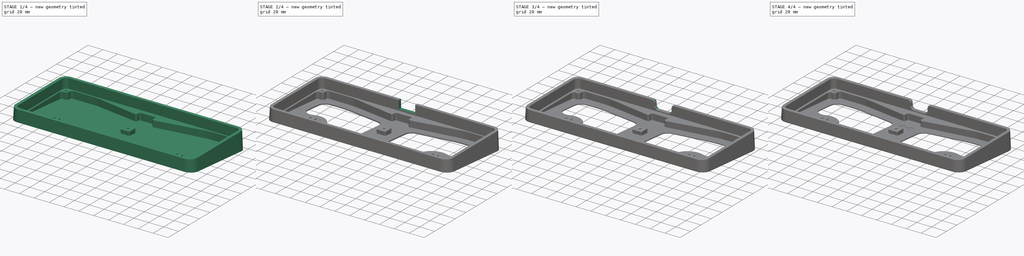
[diagram: build sequence overview — one tinted view per stage of 4, left to right]
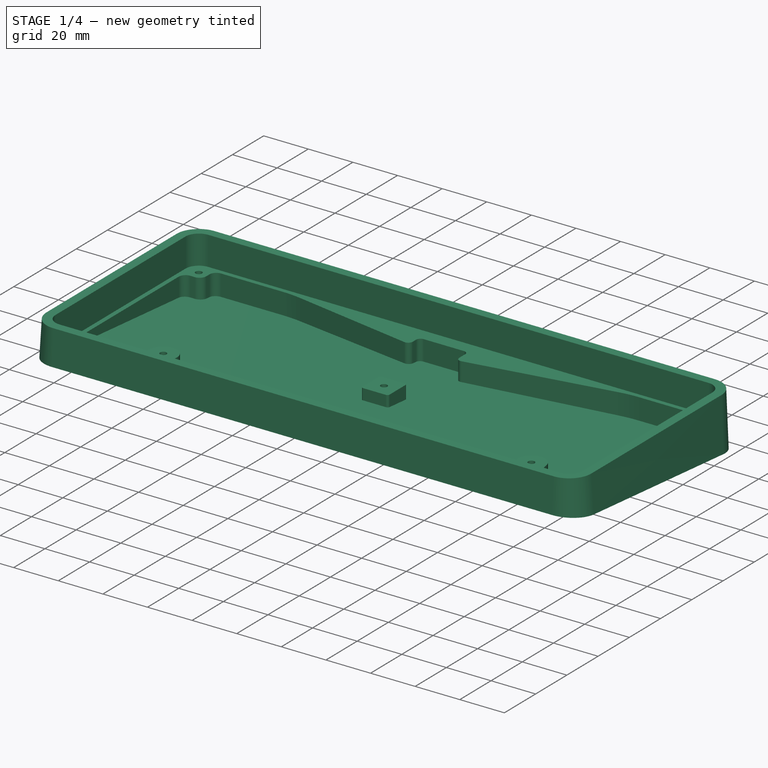
[diagram: stage 1 of 4 — iso view after this stage's code; geometry added in this stage tinted green]
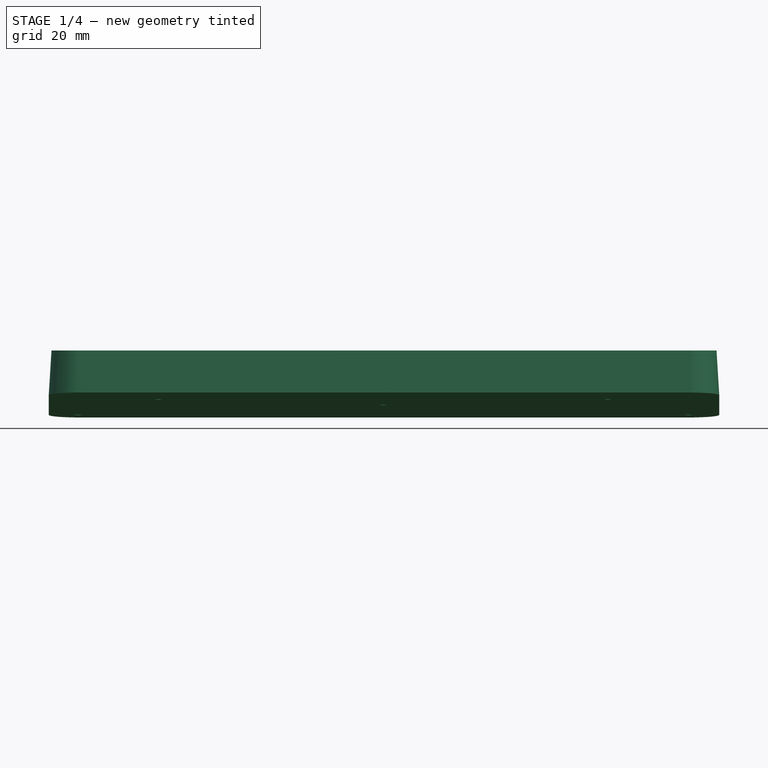
[diagram: stage 1 of 4 — front view after this stage's code; geometry added in this stage tinted green]
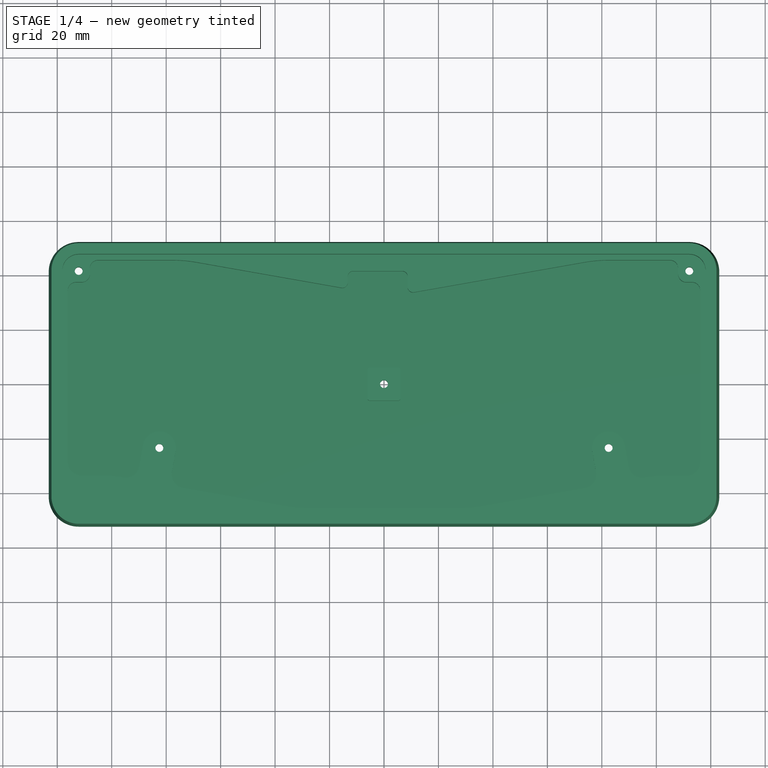
[diagram: stage 1 of 4 — top view after this stage's code; geometry added in this stage tinted green]
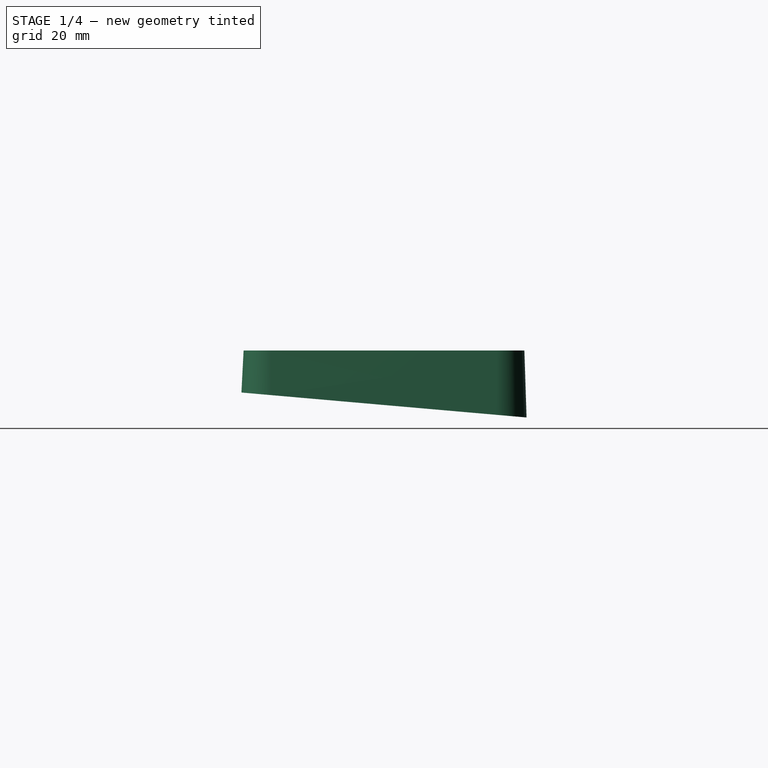
[diagram: stage 1 of 4 — right view after this stage's code; geometry added in this stage tinted green]
FCSTD DOCUMENT  (FreeCAD 0.20R)
Label: case
License: All rights reserved
LicenseURL: http://en.wikipedia.org/wiki/All_rights_reserved
objects: Sketcher::SketchObject×9, PartDesign::Pocket×6, PartDesign::Fillet×5, PartDesign::AdditiveLoft×1, PartDesign::Hole×1, PartDesign::Chamfer×1, PartDesign::Body×1
note: 38 computed .brp shape members not serialized (recipe doc carries the construction recipe); baked Part::Feature solids carry a one-line shape summary decoded from their .brp

FEATURE [Sketcher::SketchObject] Sketch001  label="ext2"
  AttachmentOffset = pos=(0,0,20) rot=(0,0,1;0rad)
  FullyConstrained = false
  MapMode = 5
  Placement = pos=(0,0,20) rot=(0,0,1;0rad)
  Support = -> [XY_Plane]
  sketch-geometry (8):
    g0: LineSegment StartX=-112.125 StartY=51.561 StartZ=0 EndX=112.125 EndY=51.561 EndZ=0
    g1: LineSegment StartX=-112.125 StartY=-51.561 StartZ=0 EndX=112.125 EndY=-51.561 EndZ=0
    g2: ArcOfCircle CenterX=112.125 CenterY=41.561 CenterZ=0 NormalX=0 NormalY=0 NormalZ=1 AngleXU=0 Radius=10 StartAngle=0 EndAngle=1.5708
    g3: ArcOfCircle CenterX=-112.125 CenterY=41.561 CenterZ=0 NormalX=0 NormalY=0 NormalZ=1 AngleXU=0 Radius=10 StartAngle=1.5708 EndAngle=3.14159
    g4: ArcOfCircle CenterX=-112.125 CenterY=-41.561 CenterZ=0 NormalX=0 NormalY=0 NormalZ=1 AngleXU=0 Radius=10 StartAngle=3.14159 EndAngle=4.71239
    g5: LineSegment StartX=-122.125 StartY=41.561 StartZ=0 EndX=-122.125 EndY=-41.561 EndZ=0
    g6: LineSegment StartX=122.125 StartY=41.561 StartZ=0 EndX=122.125 EndY=-41.561 EndZ=0
    g7: ArcOfCircle CenterX=112.125 CenterY=-41.561 CenterZ=0 NormalX=0 NormalY=0 NormalZ=1 AngleXU=0 Radius=10 StartAngle=4.71239 EndAngle=6.28319
  constraints (8):
    c: Coincident(g4,g5)
    c: Coincident(g3,g5)
    c: Coincident(g1,g4)
    c: Coincident(g0,g3)
    c: Coincident(g1,g7)
    c: Coincident(g0,g2)
    c: Coincident(g6,g7)
    c: Coincident(g2,g6)
FEATURE [Sketcher::SketchObject] Sketch002  label="ext3"
  AttachmentOffset = pos=(0,0,0) rot=(1,0,0;-0.087266rad)
  FullyConstrained = false
  MapMode = 5
  Placement = pos=(0,0,0) rot=(1,0,0;6.19592rad)
  Support = -> [XY_Plane]
  sketch-geometry (8):
    g0: LineSegment StartX=-112.125 StartY=52.561 StartZ=0 EndX=112.125 EndY=52.561 EndZ=0
    g1: ArcOfCircle CenterX=112.125 CenterY=41.561 CenterZ=0 NormalX=0 NormalY=0 NormalZ=1 AngleXU=0 Radius=11 StartAngle=0 EndAngle=1.5708
    g2: LineSegment StartX=123.125 StartY=41.561 StartZ=0 EndX=123.125 EndY=-41.561 EndZ=0
    g3: ArcOfCircle CenterX=112.125 CenterY=-41.561 CenterZ=0 NormalX=0 NormalY=0 NormalZ=1 AngleXU=0 Radius=11 StartAngle=4.71239 EndAngle=6.28319
    g4: LineSegment StartX=-112.125 StartY=-52.561 StartZ=0 EndX=112.125 EndY=-52.561 EndZ=0
    g5: ArcOfCircle CenterX=-112.125 CenterY=-41.561 CenterZ=0 NormalX=0 NormalY=0 NormalZ=1 AngleXU=0 Radius=11 StartAngle=3.14159 EndAngle=4.71239
    g6: LineSegment StartX=-123.125 StartY=41.561 StartZ=0 EndX=-123.125 EndY=-41.561 EndZ=0
    g7: ArcOfCircle CenterX=-112.125 CenterY=41.561 CenterZ=0 NormalX=0 NormalY=0 NormalZ=1 AngleXU=0 Radius=11 StartAngle=1.5708 EndAngle=3.14159
  constraints (8):
    c: Coincident(g5,g6)
    c: Coincident(g6,g7)
    c: Coincident(g4,g5)
    c: Coincident(g0,g7)
    c: Coincident(g3,g4)
    c: Coincident(g0,g1)
    c: Coincident(g2,g3)
    c: Coincident(g1,g2)
FEATURE [PartDesign::AdditiveLoft] AdditiveLoft
  Closed = false
  Profile = -> Sketch001
  Ruled = true
  Sections = -> [Sketch002]
FEATURE [Sketcher::SketchObject] Sketch  label="ext1"
  FullyConstrained = false
  MapMode = 5
  Placement = pos=(0,0,20) rot=(0,0,1;0rad)
  Support = -> [AdditiveLoft]
  sketch-geometry (8):
    g0: LineSegment StartX=-112.125 StartY=47.561 StartZ=0 EndX=112.125 EndY=47.561 EndZ=0
    g1: LineSegment StartX=-112.125 StartY=-47.561 StartZ=0 EndX=112.125 EndY=-47.561 EndZ=0
    g2: ArcOfCircle CenterX=112.125 CenterY=-41.561 CenterZ=0 NormalX=0 NormalY=0 NormalZ=1 AngleXU=0 Radius=6 StartAngle=4.71239 EndAngle=6.28319
    g3: ArcOfCircle CenterX=-112.125 CenterY=-41.561 CenterZ=0 NormalX=0 NormalY=0 NormalZ=1 AngleXU=0 Radius=6 StartAngle=3.14159 EndAngle=4.71239
    g4: LineSegment StartX=-118.125 StartY=41.561 StartZ=0 EndX=-118.125 EndY=-41.561 EndZ=0
    g5: ArcOfCircle CenterX=-112.125 CenterY=41.561 CenterZ=0 NormalX=0 NormalY=0 NormalZ=1 AngleXU=0 Radius=6 StartAngle=1.5708 EndAngle=3.14159
    g6: ArcOfCircle CenterX=112.125 CenterY=41.561 CenterZ=0 NormalX=0 NormalY=0 NormalZ=1 AngleXU=0 Radius=6 StartAngle=0 EndAngle=1.5708
    g7: LineSegment StartX=118.125 StartY=41.561 StartZ=0 EndX=118.125 EndY=-41.561 EndZ=0
  constraints (8):
    c: Coincident(g3,g4)
    c: Coincident(g4,g5)
    c: Coincident(g1,g3)
    c: Coincident(g0,g5)
    c: Coincident(g1,g2)
    c: Coincident(g0,g6)
    c: Coincident(g2,g7)
    c: Coincident(g6,g7)
FEATURE [PartDesign::Pocket] Pocket
  BaseFeature = -> AdditiveLoft
  Direction = (0,0,-1)
  Length = 13
  Length2 = 5
  Offset = -3
  Profile = -> Sketch
  ReferenceAxis = -> Sketch [N_Axis]
  Type = 0
FEATURE [Sketcher::SketchObject] Sketch003  label="int"
  FullyConstrained = false
  MapMode = 5
  Placement = pos=(0,0,7) rot=(0,0,1;0rad)
  Support = -> [Pocket]
  sketch-geometry (54):
    g0: ArcOfCircle CenterX=-111.125 CenterY=-28.579 CenterZ=0 NormalX=0 NormalY=0 NormalZ=1 AngleXU=0 Radius=5 StartAngle=3.14159 EndAngle=4.71239
    g1: LineSegment StartX=-111.125 StartY=-33.579 StartZ=0 EndX=-103.958 EndY=-33.579 EndZ=0
    g2: ArcOfCircle CenterX=-27.256 CenterY=4.43899 CenterZ=0 NormalX=0 NormalY=0 NormalZ=1 AngleXU=0 Radius=50 StartAngle=4.53786 EndAngle=4.71239
    g3: ArcOfCircle CenterX=111.125 CenterY=-28.579 CenterZ=0 NormalX=0 NormalY=0 NormalZ=1 AngleXU=0 Radius=5 StartAngle=4.71239 EndAngle=6.28319
    g4: LineSegment StartX=111.125 StartY=-33.579 StartZ=0 EndX=103.958 EndY=-33.579 EndZ=0
    g5: ArcOfCircle CenterX=27.256 CenterY=4.43899 CenterZ=0 NormalX=0 NormalY=0 NormalZ=1 AngleXU=0 Radius=50 StartAngle=4.71239 EndAngle=4.88692
    g6: LineSegment StartX=-27.256 StartY=-45.561 StartZ=0 EndX=27.256 EndY=-45.561 EndZ=0
    g7: ArcOfCircle CenterX=-11.3028 CenterY=39.541 CenterZ=0 NormalX=0 NormalY=0 NormalZ=1 AngleXU=0 Radius=2 StartAngle=1.5708 EndAngle=3.14159
    g8: LineSegment StartX=-11.3028 StartY=41.541 StartZ=0 EndX=6.69716 EndY=41.541 EndZ=0
    g9: ArcOfCircle CenterX=6.69716 CenterY=39.541 CenterZ=0 NormalX=0 NormalY=0 NormalZ=1 AngleXU=0 Radius=2 StartAngle=0 EndAngle=1.5708
    g10: LineSegment StartX=8.69716 StartY=35.7139 StartZ=0 EndX=8.69716 EndY=39.541 EndZ=0
    g11: ArcOfCircle CenterX=10.6972 CenterY=35.7139 CenterZ=0 NormalX=0 NormalY=0 NormalZ=1 AngleXU=0 Radius=2 StartAngle=3.14159 EndAngle=4.88692
    g12: LineSegment StartX=-13.3028 StartY=37.3635 StartZ=0 EndX=-13.3028 EndY=39.541 EndZ=0
    g13: ArcOfCircle CenterX=-15.3028 CenterY=37.3635 CenterZ=0 NormalX=0 NormalY=0 NormalZ=1 AngleXU=0 Radius=2 StartAngle=4.53786 EndAngle=6.28319
    g14: LineSegment StartX=-69.0025 StartY=44.8014 StartZ=0 EndX=-15.6501 EndY=35.3939 EndZ=0
    g15: ArcOfCircle CenterX=-77.6849 CenterY=-4.43899 CenterZ=0 NormalX=0 NormalY=0 NormalZ=1 AngleXU=0 Radius=50 StartAngle=1.39626 EndAngle=1.5708
    g16: LineSegment StartX=11.0445 StartY=33.7443 StartZ=0 EndX=73.7525 EndY=44.8014 EndZ=0
    g17: ArcOfCircle CenterX=82.4349 CenterY=-4.43899 CenterZ=0 NormalX=0 NormalY=0 NormalZ=1 AngleXU=0 Radius=50 StartAngle=1.5708 EndAngle=1.74533
    g18: ArcOfCircle CenterX=-82.5 CenterY=-23.459 CenterZ=0 NormalX=0 NormalY=0 NormalZ=1 AngleXU=0 Radius=6.1 StartAngle=6.10865 EndAngle=9.25025
    g19: ArcOfCircle CenterX=82.5 CenterY=-23.459 CenterZ=0 NormalX=0 NormalY=0 NormalZ=1 AngleXU=0 Radius=6.1 StartAngle=0.174533 EndAngle=3.31613
    g20: ArcOfCircle CenterX=5.1 CenterY=-5.1 CenterZ=0 NormalX=0 NormalY=0 NormalZ=1 AngleXU=0 Radius=1 StartAngle=4.71239 EndAngle=6.28319
    g21: LineSegment StartX=5.1 StartY=-6.1 StartZ=0 EndX=-5.1 EndY=-6.1 EndZ=0
    g22: ArcOfCircle CenterX=-5.1 CenterY=-5.1 CenterZ=0 NormalX=0 NormalY=0 NormalZ=1 AngleXU=0 Radius=1 StartAngle=3.14159 EndAngle=4.71239
    g23: LineSegment StartX=-6.1 StartY=5.1 StartZ=0 EndX=-6.1 EndY=-5.1 EndZ=0
    g24: ArcOfCircle CenterX=-5.1 CenterY=5.1 CenterZ=0 NormalX=0 NormalY=0 NormalZ=1 AngleXU=0 Radius=1 StartAngle=1.5708 EndAngle=3.14159
    g25: LineSegment StartX=5.1 StartY=6.1 StartZ=0 EndX=-5.1 EndY=6.1 EndZ=0
    g26: LineSegment StartX=6.1 StartY=5.1 StartZ=0 EndX=6.1 EndY=-5.1 EndZ=0
    g27: ArcOfCircle CenterX=5.1 CenterY=5.1 CenterZ=0 NormalX=0 NormalY=0 NormalZ=1 AngleXU=0 Radius=1 StartAngle=0 EndAngle=1.5708
    g28: ArcOfCircle CenterX=111.025 CenterY=40.461 CenterZ=0 NormalX=0 NormalY=0 NormalZ=1 AngleXU=0 Radius=3 StartAngle=3.14159 EndAngle=4.71239
    g29: LineSegment StartX=113.125 StartY=37.461 StartZ=0 EndX=111.025 EndY=37.461 EndZ=0
    g30: LineSegment StartX=116.125 StartY=34.461 StartZ=0 EndX=116.125 EndY=-28.579 EndZ=0
    g31: ArcOfCircle CenterX=113.125 CenterY=34.461 CenterZ=0 NormalX=0 NormalY=0 NormalZ=1 AngleXU=0 Radius=3 StartAngle=0 EndAngle=1.5708
    g32: LineSegment StartX=82.4349 StartY=45.561 StartZ=0 EndX=105.025 EndY=45.561 EndZ=0
    g33: LineSegment StartX=108.025 StartY=42.561 StartZ=0 EndX=108.025 EndY=40.461 EndZ=0
    g34: ArcOfCircle CenterX=105.025 CenterY=42.561 CenterZ=0 NormalX=0 NormalY=0 NormalZ=1 AngleXU=0 Radius=3 StartAngle=0 EndAngle=1.5708
    g35: LineSegment StartX=-116.125 StartY=34.461 StartZ=0 EndX=-116.125 EndY=-28.579 EndZ=0
    g36: ArcOfCircle CenterX=-113.125 CenterY=34.461 CenterZ=0 NormalX=0 NormalY=0 NormalZ=1 AngleXU=0 Radius=3 StartAngle=1.5708 EndAngle=3.14159
    g37: LineSegment StartX=-113.125 StartY=37.461 StartZ=0 EndX=-111.025 EndY=37.461 EndZ=0
    g38: ArcOfCircle CenterX=-111.025 CenterY=40.461 CenterZ=0 NormalX=0 NormalY=0 NormalZ=1 AngleXU=0 Radius=3 StartAngle=4.71239 EndAngle=6.28319
    g39: LineSegment StartX=-108.025 StartY=42.561 StartZ=0 EndX=-108.025 EndY=40.461 EndZ=0
    g40: LineSegment StartX=-105.025 StartY=45.561 StartZ=0 EndX=-77.6849 EndY=45.561 EndZ=0
    g41: ArcOfCircle CenterX=-105.025 CenterY=42.561 CenterZ=0 NormalX=0 NormalY=0 NormalZ=1 AngleXU=0 Radius=3 StartAngle=1.5708 EndAngle=3.14159
    g42: LineSegment StartX=-73.8144 StartY=-38.1228 StartZ=0 EndX=-35.9384 EndY=-44.8014 EndZ=0
    g43: LineSegment StartX=-77.8702 StartY=-32.3306 StartZ=0 EndX=-76.4927 EndY=-24.5182 EndZ=0
    g44: ArcOfCircle CenterX=-72.9462 CenterY=-33.1988 CenterZ=0 NormalX=0 NormalY=0 NormalZ=1 AngleXU=0 Radius=5 StartAngle=2.96706 EndAngle=4.53786
    g45: LineSegment StartX=-89.8851 StartY=-30.2135 StartZ=0 EndX=-88.5073 EndY=-22.3997 EndZ=0
    g46: ArcOfCircle CenterX=-103.958 CenterY=-83.579 CenterZ=0 NormalX=0 NormalY=0 NormalZ=1 AngleXU=0 Radius=50 StartAngle=1.40367 EndAngle=1.5708
    g47: ArcOfCircle CenterX=-94.8092 CenterY=-29.3453 CenterZ=0 NormalX=0 NormalY=0 NormalZ=1 AngleXU=0 Radius=5 StartAngle=4.54526 EndAngle=6.10865
    g48: LineSegment StartX=89.8851 StartY=-30.2135 StartZ=0 EndX=88.5073 EndY=-22.3997 EndZ=0
    g49: ArcOfCircle CenterX=103.958 CenterY=-83.579 CenterZ=0 NormalX=0 NormalY=0 NormalZ=1 AngleXU=0 Radius=50 StartAngle=1.5708 EndAngle=1.73792
    g50: ArcOfCircle CenterX=94.8092 CenterY=-29.3453 CenterZ=0 NormalX=0 NormalY=0 NormalZ=1 AngleXU=0 Radius=5 StartAngle=3.31613 EndAngle=4.87951
    g51: LineSegment StartX=73.8144 StartY=-38.1228 StartZ=0 EndX=35.9384 EndY=-44.8014 EndZ=0
    g52: LineSegment StartX=77.8702 StartY=-32.3306 StartZ=0 EndX=76.4927 EndY=-24.5182 EndZ=0
    g53: ArcOfCircle CenterX=72.9462 CenterY=-33.1988 CenterZ=0 NormalX=0 NormalY=0 NormalZ=1 AngleXU=0 Radius=5 StartAngle=4.88692 EndAngle=6.45772
  constraints (54):
    c: Coincident(g0,g35)
    c: Coincident(g35,g36)
    c: Coincident(g36,g37)
    c: Coincident(g0,g1)
    c: Coincident(g37,g38)
    c: Coincident(g38,g39)
    c: Coincident(g39,g41)
    c: Coincident(g40,g41)
    c: Coincident(g1,g46)
    c: Coincident(g46,g47)
    c: Coincident(g45,g47)
    c: Coincident(g18,g45)
    c: Coincident(g43,g44)
    c: Coincident(g15,g40)
    c: Coincident(g18,g43)
    c: Coincident(g42,g44)
    c: Coincident(g14,g15)
    c: Coincident(g2,g42)
    c: Coincident(g2,g6)
    c: Coincident(g13,g14)
    c: Coincident(g12,g13)
    c: Coincident(g7,g12)
    c: Coincident(g7,g8)
    c: Coincident(g22,g23)
    c: Coincident(g23,g24)
    c: Coincident(g21,g22)
    c: Coincident(g24,g25)
    c: Coincident(g20,g21)
    c: Coincident(g25,g27)
    c: Coincident(g20,g26)
    c: Coincident(g26,g27)
    c: Coincident(g8,g9)
    c: Coincident(g10,g11)
    c: Coincident(g9,g10)
    c: Coincident(g11,g16)
    c: Coincident(g5,g6)
    c: Coincident(g5,g51)
    c: Coincident(g16,g17)
    c: Coincident(g51,g53)
    c: Coincident(g19,g52)
    c: Coincident(g52,g53)
    c: Coincident(g17,g32)
    c: Coincident(g19,g48)
    c: Coincident(g48,g50)
    c: Coincident(g49,g50)
    c: Coincident(g4,g49)
    c: Coincident(g32,g34)
    c: Coincident(g28,g33)
    c: Coincident(g33,g34)
    c: Coincident(g28,g29)
    c: Coincident(g3,g4)
    c: Coincident(g29,g31)
    c: Coincident(g3,g30)
    c: Coincident(g30,g31)
FEATURE [Sketcher::SketchObject] Sketch004  label="percage"
  FullyConstrained = false
  MapMode = 5
  Placement = pos=(0,0,7) rot=(0,0,1;0rad)
  Support = -> [Pocket]
  sketch-geometry (5):
    g0: Circle CenterX=-82.5 CenterY=-23.459 CenterZ=0 NormalX=0 NormalY=0 NormalZ=-1 AngleXU=0 Radius=1.1
    g1: Circle CenterX=0 CenterY=0 CenterZ=0 NormalX=0 NormalY=0 NormalZ=-1 AngleXU=0 Radius=1.1
    g2: Circle CenterX=82.5 CenterY=-23.459 CenterZ=0 NormalX=0 NormalY=0 NormalZ=-1 AngleXU=0 Radius=1.1
    g3: Circle CenterX=112.125 CenterY=41.561 CenterZ=0 NormalX=0 NormalY=0 NormalZ=-1 AngleXU=0 Radius=1.1
    g4: Circle CenterX=-112.125 CenterY=41.561 CenterZ=0 NormalX=0 NormalY=0 NormalZ=-1 AngleXU=0 Radius=1.1
FEATURE [PartDesign::Pocket] Pocket001
  BaseFeature = -> Pocket
  Direction = (0,0,-1)
  Length = 0
  Length2 = 5
  Offset = -1.5
  Profile = -> Sketch003
  ReferenceAxis = -> Sketch003 [N_Axis]
  Type = 3
  UpToFace = -> Pocket [Face18]
FEATURE [PartDesign::Hole] Hole
  BaseFeature = -> Pocket001
  CustomThreadClearance = 0
  Depth = 542.36
  DepthType = 1
  Diameter = 2.9
  DrillForDepth = false
  DrillPoint = 1
  DrillPointAngle = 118
  HoleCutCountersinkAngle = 90
  HoleCutCustomValues = false
  HoleCutDepth = 0
  HoleCutDiameter = 6.1
  HoleCutType = 0
  ModelThread = false
  Profile = -> Sketch004
  Tapered = false
  TaperedAngle = 90
  ThreadClass = 0
  ThreadDepth = 542.36
  ThreadDepthType = 0
  ThreadDirection = 0
  ThreadFit = 0
  ThreadSize = 8
  ThreadType = 1
  Threaded = false
  UseCustomThreadClearance = false
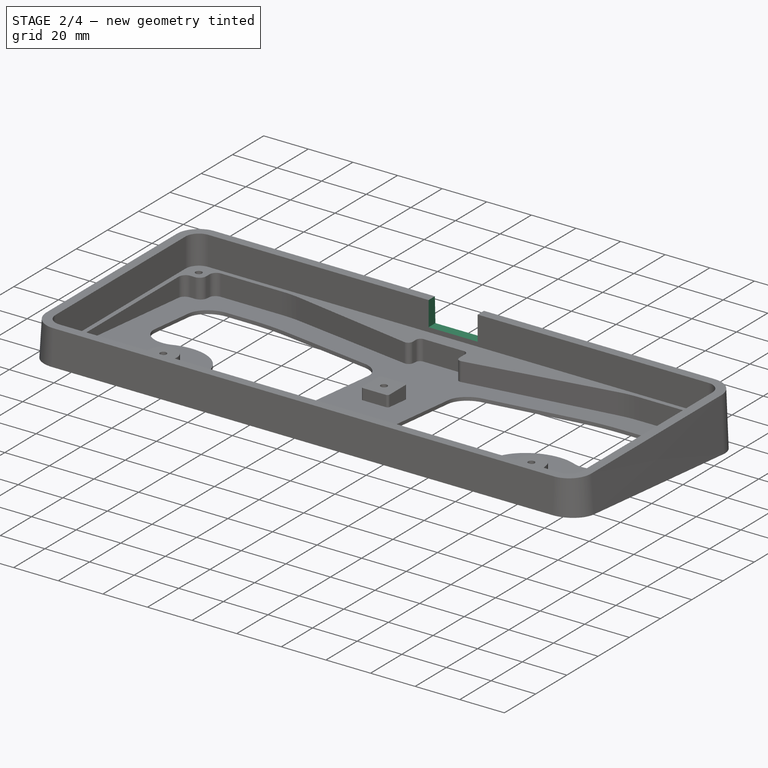
[diagram: stage 2 of 4 — iso view after this stage's code; geometry added in this stage tinted green]
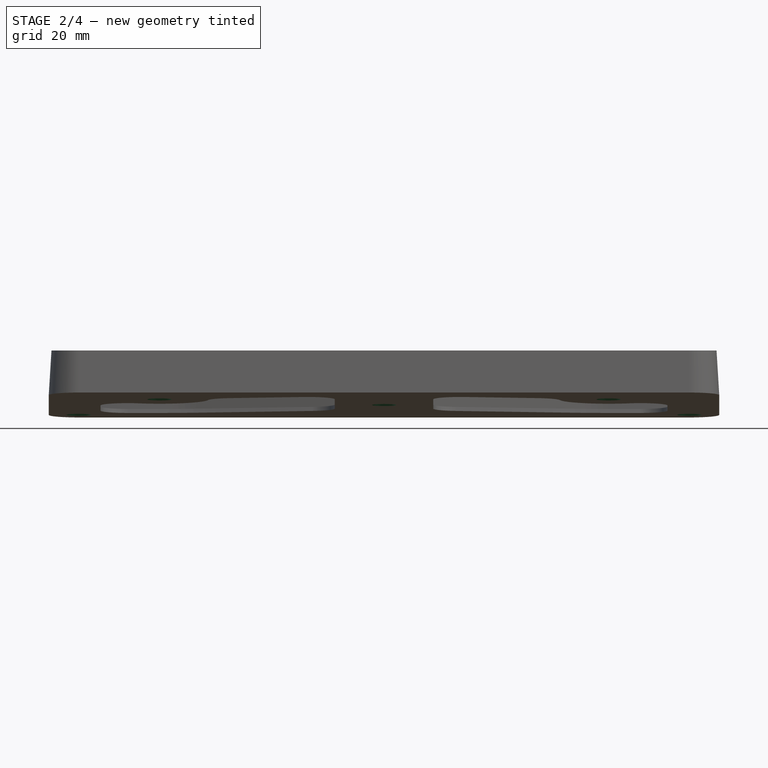
[diagram: stage 2 of 4 — front view after this stage's code; geometry added in this stage tinted green]
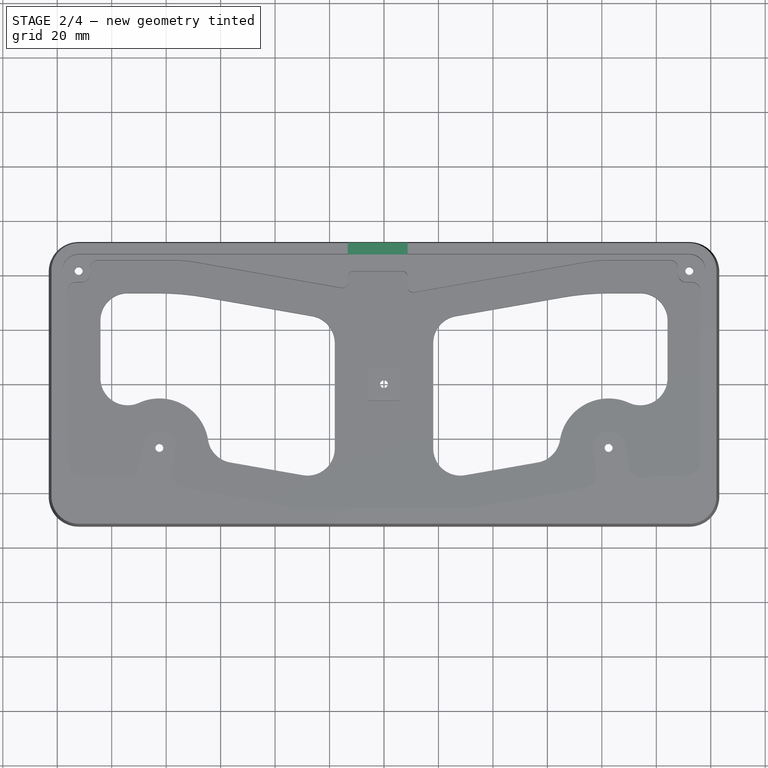
[diagram: stage 2 of 4 — top view after this stage's code; geometry added in this stage tinted green]
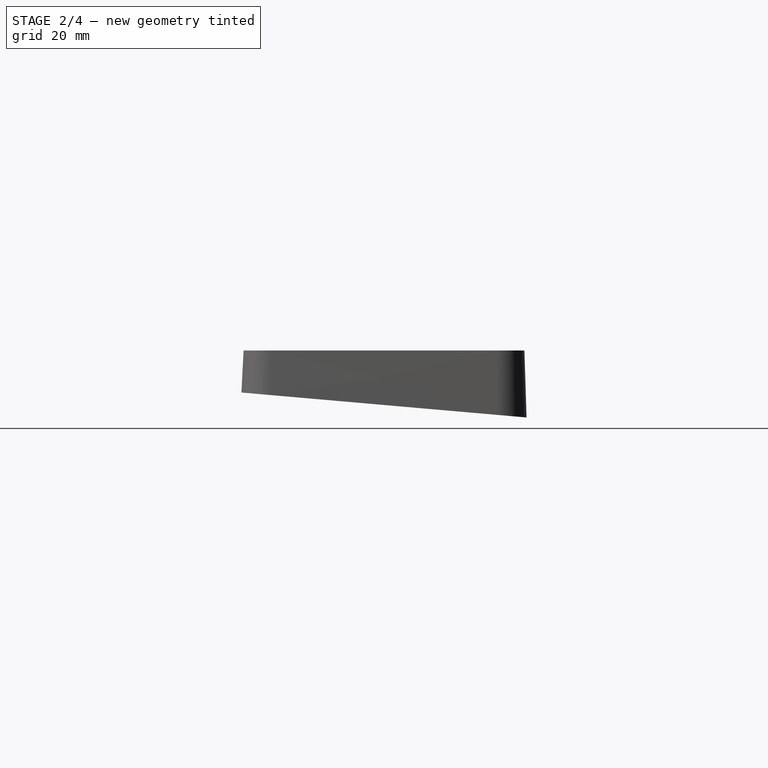
[diagram: stage 2 of 4 — right view after this stage's code; geometry added in this stage tinted green]
FEATURE [PartDesign::Chamfer] Chamfer
  Angle = 45
  Base = -> Hole [Edge52,Edge49,Edge51,Edge50,Edge53]
  BaseFeature = -> Hole
  ChamferType = 0
  FlipDirection = false
  Size = 3
  Size2 = 1
  SupportTransform = false
  UseAllEdges = false
FEATURE [Sketcher::SketchObject] Sketch005  label="ajour"
  FullyConstrained = false
  MapMode = 5
  Placement = pos=(0,0.130236,1.48861) rot=(-1,0,0;0.087266rad)
  Support = -> [Hole]
  sketch-geometry (24):
    g0: ArcOfCircle CenterX=-28.1 CenterY=15.2498 CenterZ=0 NormalX=0 NormalY=0 NormalZ=1 AngleXU=0 Radius=10 StartAngle=0 EndAngle=1.39626
    g1: LineSegment StartX=-18.1 StartY=-23.8441 StartZ=0 EndX=-18.1 EndY=15.2498 EndZ=0
    g2: ArcOfCircle CenterX=-28.1 CenterY=-23.8441 CenterZ=0 NormalX=0 NormalY=0 NormalZ=1 AngleXU=0 Radius=10 StartAngle=4.53786 EndAngle=6.28319
    g3: LineSegment StartX=-56.4691 StartY=-28.9962 StartZ=0 EndX=-29.8365 EndY=-33.6922 EndZ=0
    g4: ArcOfCircle CenterX=-54.7326 CenterY=-19.1481 CenterZ=0 NormalX=0 NormalY=0 NormalZ=1 AngleXU=0 Radius=10 StartAngle=3.29561 EndAngle=4.53786
    g5: ArcOfCircle CenterX=-82.5 CenterY=-23.459 CenterZ=0 NormalX=0 NormalY=0 NormalZ=1 AngleXU=0 Radius=18.1 StartAngle=0.15402 EndAngle=1.99731
    g6: ArcOfCircle CenterX=-94.125 CenterY=2.12365 CenterZ=0 NormalX=0 NormalY=0 NormalZ=1 AngleXU=0 Radius=10 StartAngle=3.14159 EndAngle=5.1389
    g7: LineSegment StartX=-104.125 StartY=23.561 StartZ=0 EndX=-104.125 EndY=2.12365 EndZ=0
    g8: ArcOfCircle CenterX=-94.125 CenterY=23.561 CenterZ=0 NormalX=0 NormalY=0 NormalZ=1 AngleXU=0 Radius=10 StartAngle=1.5708 EndAngle=3.14159
    g9: LineSegment StartX=-65.7444 StartY=32.0418 StartZ=0 EndX=-26.3635 EndY=25.0979 EndZ=0
    g10: LineSegment StartX=-94.125 StartY=33.561 StartZ=0 EndX=-83.1092 EndY=33.561 EndZ=0
    g11: ArcOfCircle CenterX=-83.1092 CenterY=-66.439 CenterZ=0 NormalX=0 NormalY=0 NormalZ=1 AngleXU=0 Radius=100 StartAngle=1.39626 EndAngle=1.5708
    g12: ArcOfCircle CenterX=28.1 CenterY=15.2498 CenterZ=0 NormalX=0 NormalY=0 NormalZ=1 AngleXU=0 Radius=10 StartAngle=1.74533 EndAngle=3.14159
    g13: LineSegment StartX=18.1 StartY=-23.8441 StartZ=0 EndX=18.1 EndY=15.2498 EndZ=0
    g14: ArcOfCircle CenterX=28.1 CenterY=-23.8441 CenterZ=0 NormalX=0 NormalY=0 NormalZ=1 AngleXU=0 Radius=10 StartAngle=3.14159 EndAngle=4.88692
    g15: LineSegment StartX=56.4691 StartY=-28.9962 StartZ=0 EndX=29.8365 EndY=-33.6922 EndZ=0
    g16: ArcOfCircle CenterX=54.7326 CenterY=-19.1481 CenterZ=0 NormalX=0 NormalY=0 NormalZ=1 AngleXU=0 Radius=10 StartAngle=4.88692 EndAngle=6.12917
    g17: ArcOfCircle CenterX=82.5 CenterY=-23.459 CenterZ=0 NormalX=0 NormalY=0 NormalZ=1 AngleXU=0 Radius=18.1 StartAngle=1.14428 EndAngle=2.98757
    g18: ArcOfCircle CenterX=94.125 CenterY=2.12365 CenterZ=0 NormalX=0 NormalY=0 NormalZ=1 AngleXU=0 Radius=10 StartAngle=4.28587 EndAngle=6.28319
    g19: LineSegment StartX=104.125 StartY=23.561 StartZ=0 EndX=104.125 EndY=2.12365 EndZ=0
    g20: ArcOfCircle CenterX=94.125 CenterY=23.561 CenterZ=0 NormalX=0 NormalY=0 NormalZ=1 AngleXU=0 Radius=10 StartAngle=0 EndAngle=1.5708
    g21: LineSegment StartX=65.7444 StartY=32.0418 StartZ=0 EndX=26.3635 EndY=25.0979 EndZ=0
    g22: LineSegment StartX=94.125 StartY=33.561 StartZ=0 EndX=83.1092 EndY=33.561 EndZ=0
    g23: ArcOfCircle CenterX=83.1092 CenterY=-66.439 CenterZ=0 NormalX=0 NormalY=0 NormalZ=1 AngleXU=0 Radius=100 StartAngle=1.5708 EndAngle=1.74533
  constraints (24):
    c: Coincident(g6,g7)
    c: Coincident(g7,g8)
    c: Coincident(g8,g10)
    c: Coincident(g5,g6)
    c: Coincident(g10,g11)
    c: Coincident(g9,g11)
    c: Coincident(g4,g5)
    c: Coincident(g3,g4)
    c: Coincident(g2,g3)
    c: Coincident(g0,g9)
    c: Coincident(g1,g2)
    c: Coincident(g0,g1)
    c: Coincident(g13,g14)
    c: Coincident(g12,g13)
    c: Coincident(g12,g21)
    c: Coincident(g14,g15)
    c: Coincident(g15,g16)
    c: Coincident(g16,g17)
    c: Coincident(g21,g23)
    c: Coincident(g22,g23)
    c: Coincident(g17,g18)
    c: Coincident(g20,g22)
    c: Coincident(g18,g19)
    c: Coincident(g19,g20)
FEATURE [PartDesign::Pocket] Pocket002
  BaseFeature = -> Chamfer
  Direction = (0,-0.0871557,-0.996195)
  Length = 5
  Length2 = 5
  Profile = -> Sketch005
  ReferenceAxis = -> Sketch005 [N_Axis]
  Type = 1
FEATURE [Sketcher::SketchObject] Sketch006
  ExternalGeometry = -> [Pocket002]
  FullyConstrained = true
  MapMode = 5
  Placement = pos=(0,0,20) rot=(0,0,1;0rad)
  Support = -> [Pocket002]
  sketch-geometry (4):
    g0: LineSegment StartX=-13.3028 StartY=67.3635 StartZ=0 EndX=8.69716 EndY=67.3635 EndZ=0
    g1: LineSegment StartX=8.69716 StartY=67.3635 StartZ=0 EndX=8.69716 EndY=27.3635 EndZ=0
    g2: LineSegment StartX=8.69716 StartY=27.3635 StartZ=0 EndX=-13.3028 EndY=27.3635 EndZ=0
    g3: LineSegment StartX=-13.3028 StartY=27.3635 StartZ=0 EndX=-13.3028 EndY=67.3635 EndZ=0
  constraints (12):
    c: Coincident(g0,g1)
    c: Coincident(g1,g2)
    c: Coincident(g2,g3)
    c: Coincident(g3,g0)
    c: Horizontal(g0)
    c: Horizontal(g2)
    c: Vertical(g1)
    c: Vertical(g3)
    c: Vertical(g-3,g1)
    c: Vertical(g-4,g2)
    c: Distance(g-4,g2) = 10
    c: Distance(g1) = 40
FEATURE [PartDesign::Pocket] Pocket003
  BaseFeature = -> Pocket002
  Direction = (0,0,-1)
  Length = 0
  Length2 = 5
  Offset = -2
  Profile = -> Sketch006
  ReferenceAxis = -> Sketch006 [N_Axis]
  Type = 3
  UpToFace = -> Pocket002 [Face54]
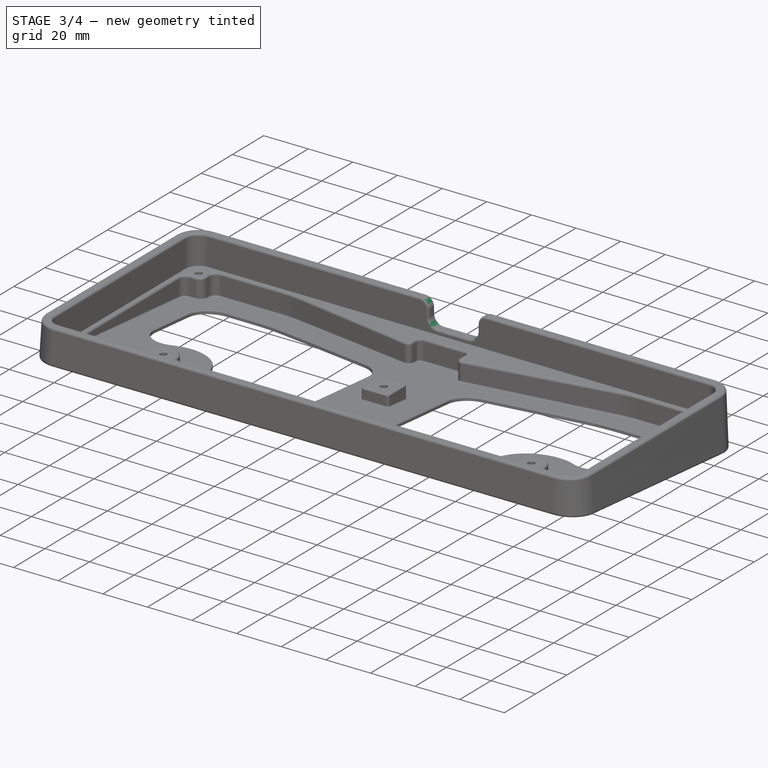
[diagram: stage 3 of 4 — iso view after this stage's code; geometry added in this stage tinted green]
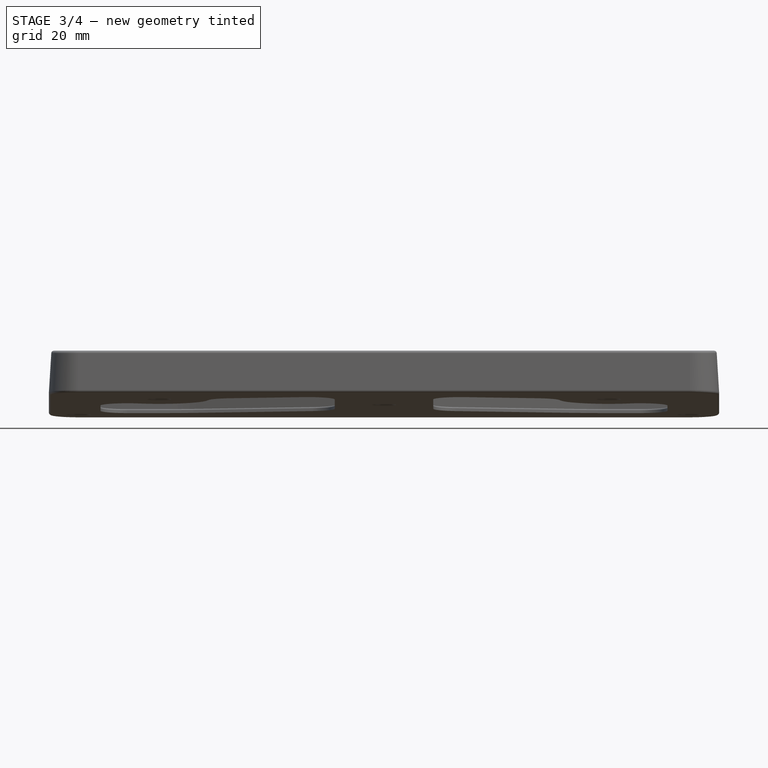
[diagram: stage 3 of 4 — front view after this stage's code; geometry added in this stage tinted green]
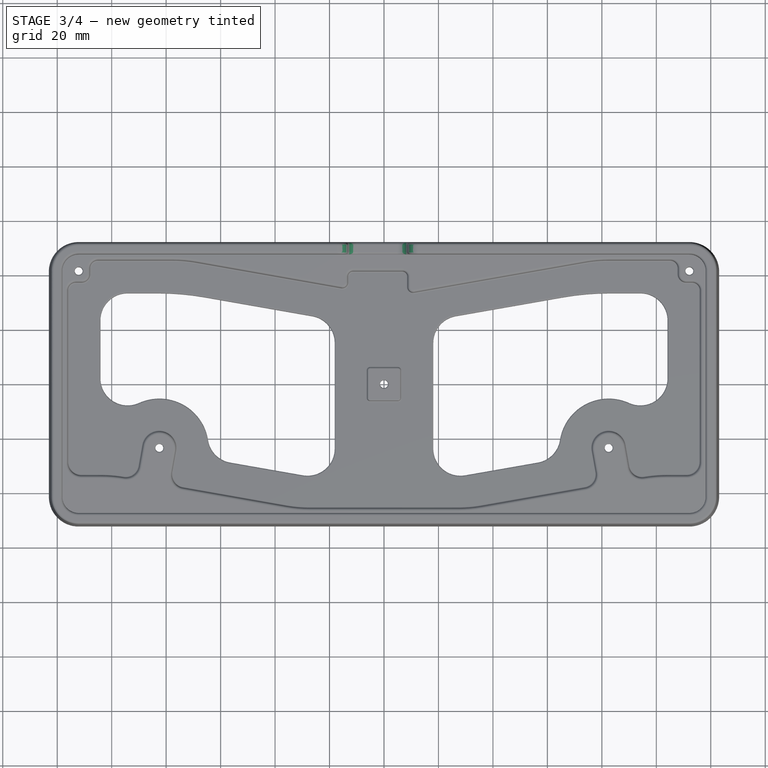
[diagram: stage 3 of 4 — top view after this stage's code; geometry added in this stage tinted green]
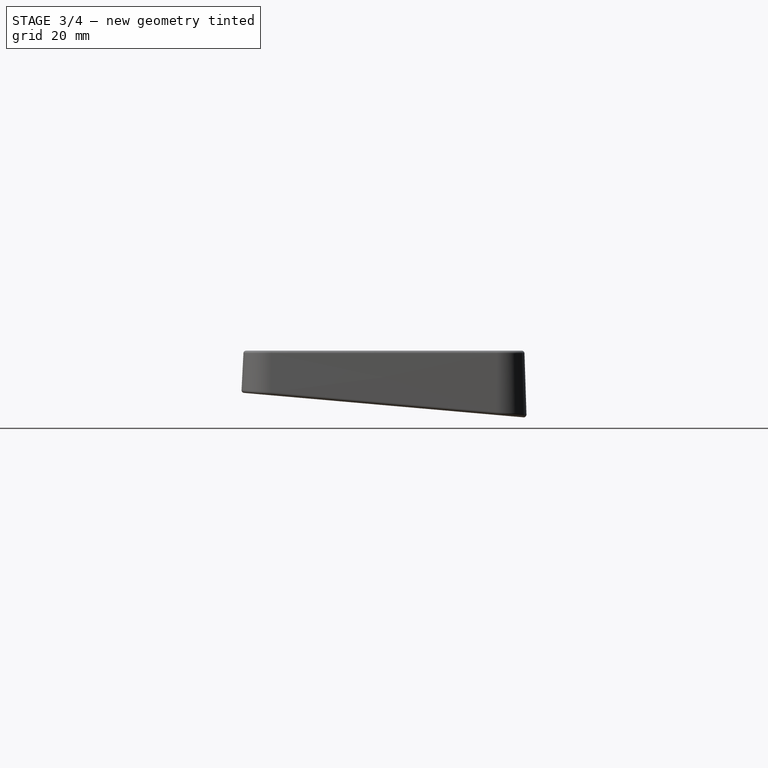
[diagram: stage 3 of 4 — right view after this stage's code; geometry added in this stage tinted green]
FEATURE [PartDesign::Fillet] Fillet
  Base = -> Pocket003 [Edge130,Edge116,Edge126,Edge128]
  BaseFeature = -> Pocket003
  Radius = 4
  SupportTransform = false
  UseAllEdges = false
FEATURE [PartDesign::Fillet] Fillet001
  Base = -> Fillet [Edge15,Edge9,Edge175,Edge42,Edge71,Edge58,Edge56,Edge43,Edge57]
  BaseFeature = -> Fillet
  Radius = 1
  SupportTransform = false
  UseAllEdges = false
FEATURE [PartDesign::Fillet] Fillet002
  Base = -> Fillet001 [Face95,Edge352,Edge353,Edge350,Edge351,Face207]
  BaseFeature = -> Fillet001
  Radius = 0.5
  SupportTransform = false
  UseAllEdges = false
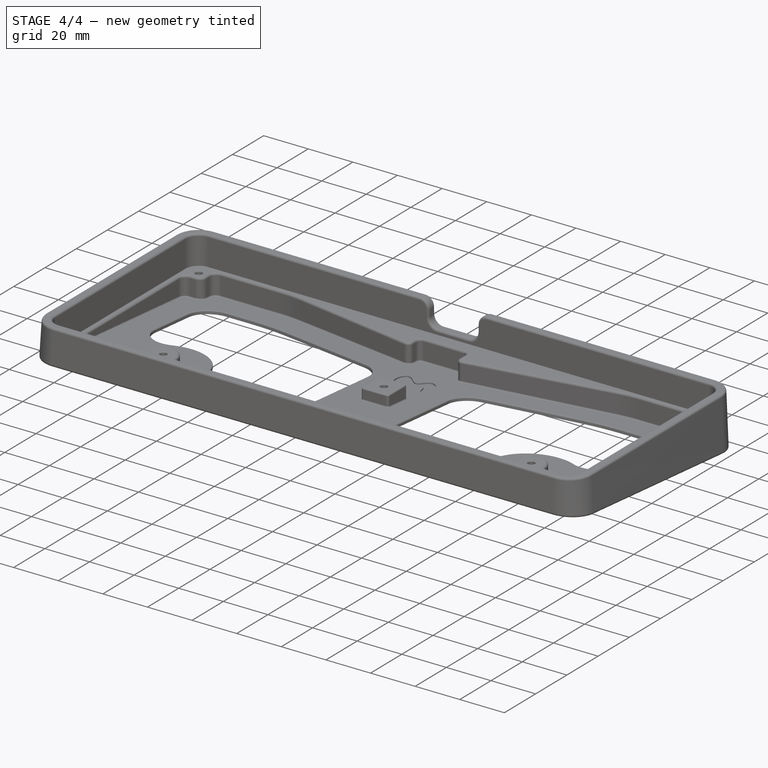
[diagram: stage 4 of 4 — iso view after this stage's code; geometry added in this stage tinted green]
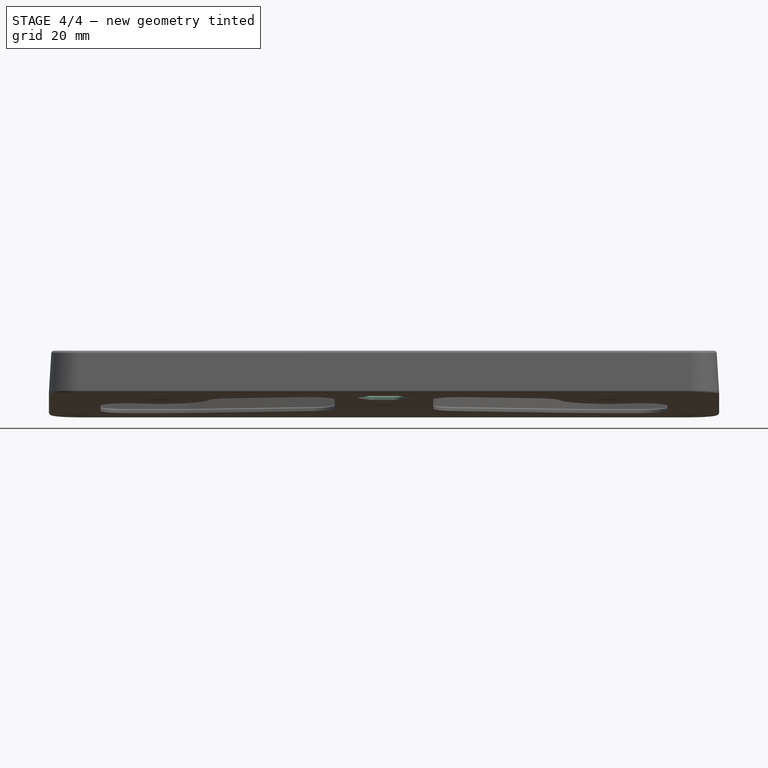
[diagram: stage 4 of 4 — front view after this stage's code; geometry added in this stage tinted green]
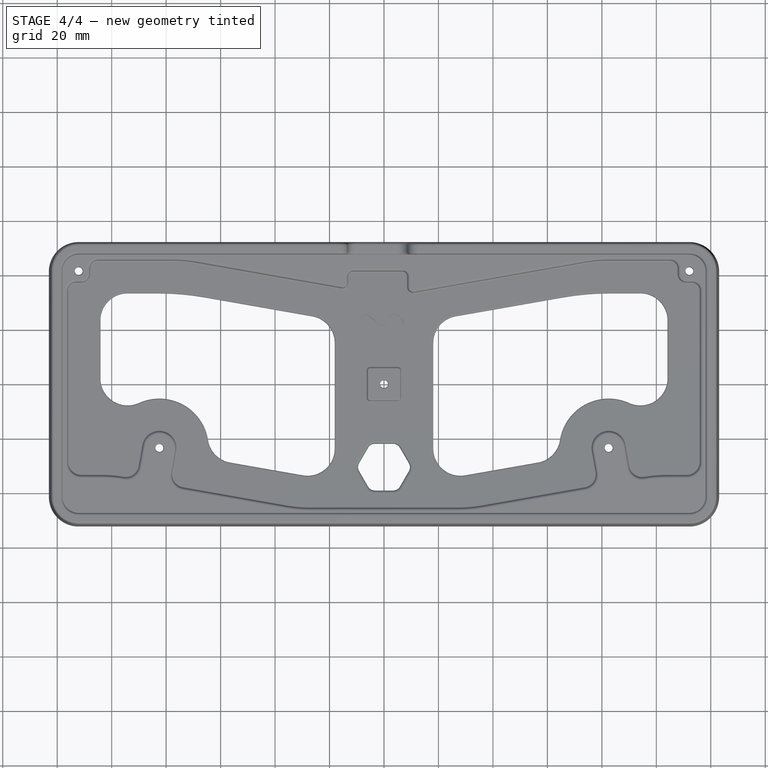
[diagram: stage 4 of 4 — top view after this stage's code; geometry added in this stage tinted green]
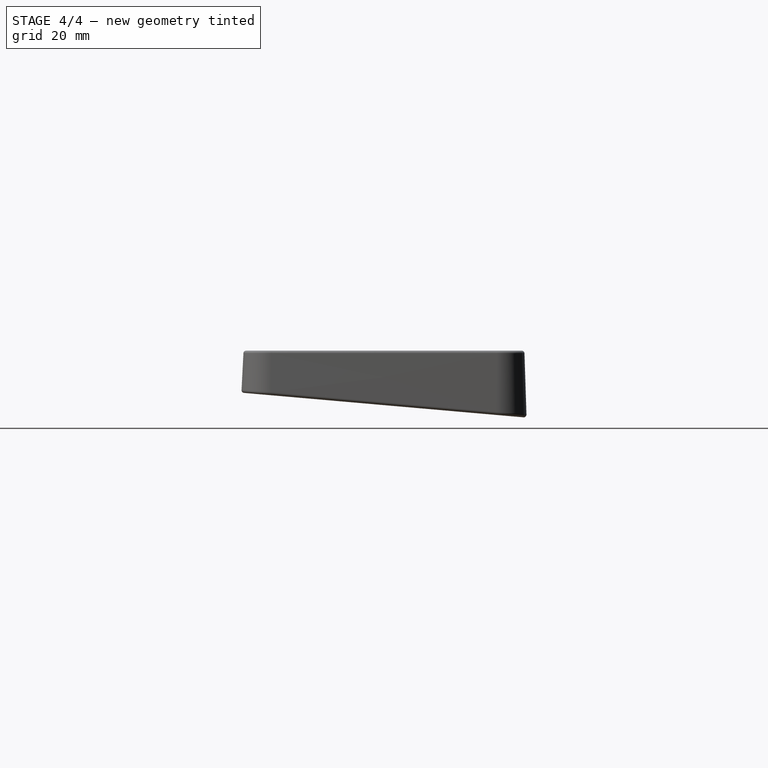
[diagram: stage 4 of 4 — right view after this stage's code; geometry added in this stage tinted green]
FEATURE [Sketcher::SketchObject] Sketch007
  ExternalGeometry = -> [Fillet002]
  FullyConstrained = true
  MapMode = 5
  Placement = pos=(0,0.130236,1.48861) rot=(-1,0,0;0.087266rad)
  Support = -> [Fillet002]
  sketch-geometry (7):
    g0: LineSegment StartX=5 StartY=-39.2703 StartZ=0 EndX=10 EndY=-30.6101 EndZ=0
    g1: LineSegment StartX=10 StartY=-30.6101 StartZ=0 EndX=5 EndY=-21.9498 EndZ=0
    g2: LineSegment StartX=5 StartY=-21.9498 StartZ=0 EndX=-5 EndY=-21.9498 EndZ=0
    g3: LineSegment StartX=-5 StartY=-21.9498 StartZ=0 EndX=-10 EndY=-30.6101 EndZ=0
    g4: LineSegment StartX=-10 StartY=-30.6101 StartZ=0 EndX=-5 EndY=-39.2703 EndZ=0
    g5: LineSegment StartX=-5 StartY=-39.2703 StartZ=0 EndX=5 EndY=-39.2703 EndZ=0
    g6: Circle CenterX=0 CenterY=-30.6101 CenterZ=0 NormalX=0 NormalY=0 NormalZ=1 AngleXU=0 Radius=10
  constraints (17):
    c: Coincident(g0,g1)
    c: Coincident(g1,g2)
    c: Coincident(g2,g3)
    c: Coincident(g3,g4)
    c: Coincident(g4,g5)
    c: Coincident(g5,g0)
    c: Equal(g0, g1-g5) x5
    c: PointOnObject(g0,g6)
    c: PointOnObject(g1,g6)
    c: PointOnObject(g2,g6)
    c: PointOnObject(g3,g6)
    c: PointOnObject(g4,g6)
    c: PointOnObject(g5,g6)
    c: PointOnObject(g6,g-2)
    c: Horizontal(g2)
    c: Distance(g2) = 10
    c: Distance(g-4,g6) = 30
FEATURE [PartDesign::Pocket] Pocket004
  BaseFeature = -> Fillet002
  Direction = (0,-0.0871557,-0.996195)
  Length = 5
  Length2 = 5
  Profile = -> Sketch007
  ReferenceAxis = -> Sketch007 [N_Axis]
  Type = 0
FEATURE [PartDesign::Fillet] Fillet003
  Base = -> Pocket004 [Edge183,Edge182,Edge181,Edge180,Edge179,Edge178]
  BaseFeature = -> Pocket004
  Radius = 3
  SupportTransform = false
  UseAllEdges = false
FEATURE [PartDesign::Fillet] Fillet004
  Base = -> Fillet003 [Edge67]
  BaseFeature = -> Fillet003
  Radius = 1
  SupportTransform = false
  UseAllEdges = false
FEATURE [Sketcher::SketchObject] Sketch008
  FullyConstrained = false
  MapMode = 5
  Placement = pos=(0,0.130236,1.48861) rot=(-1,0,0;0.087266rad)
  Support = -> [Fillet004]
  sketch-geometry (28):
    g0-g12: Circle x13 (B-spline internal-alignment scaffolding for g13; pole/knot coordinates omitted)
    g13: BSplineCurve PolesCount=13 KnotsCount=14 Degree=3 IsPeriodic=1
    g14-g27: GeomPoint x14 (B-spline internal-alignment scaffolding for g13; pole/knot coordinates omitted)
  constraints (4):
    c: Weight(g0) = 1
    c: Equal(g0, g1-g12) x12
    c: InternalAlignment(g0-g12 -> g13) x13
    c: InternalAlignment(g14-g27 -> g13) x14
FEATURE [PartDesign::Pocket] Pocket005
  BaseFeature = -> Fillet004
  Direction = (0,-0.0871557,-0.996195)
  Length = 0.5
  Length2 = 5
  Profile = -> Sketch008
  ReferenceAxis = -> Sketch008 [N_Axis]
  Type = 0
FEATURE [PartDesign::Body] Body  label="Corps"
  Group = -> [Sketch,Sketch001,Sketch002,Sketch003,Sketch004,AdditiveLoft,Pocket,Pocket001,Hole,Chamfer,Sketch005,Pocket002,Sketch006,Pocket003,Fillet,Fillet001,Fillet002,Sketch007,Pocket004,Fillet003,Fillet004,Sketch008,Pocket005]
  Origin = -> Origin
  Placement = pos=(0,0,0) rot=(1,0,0;0.087266rad)
  Tip = -> Pocket005
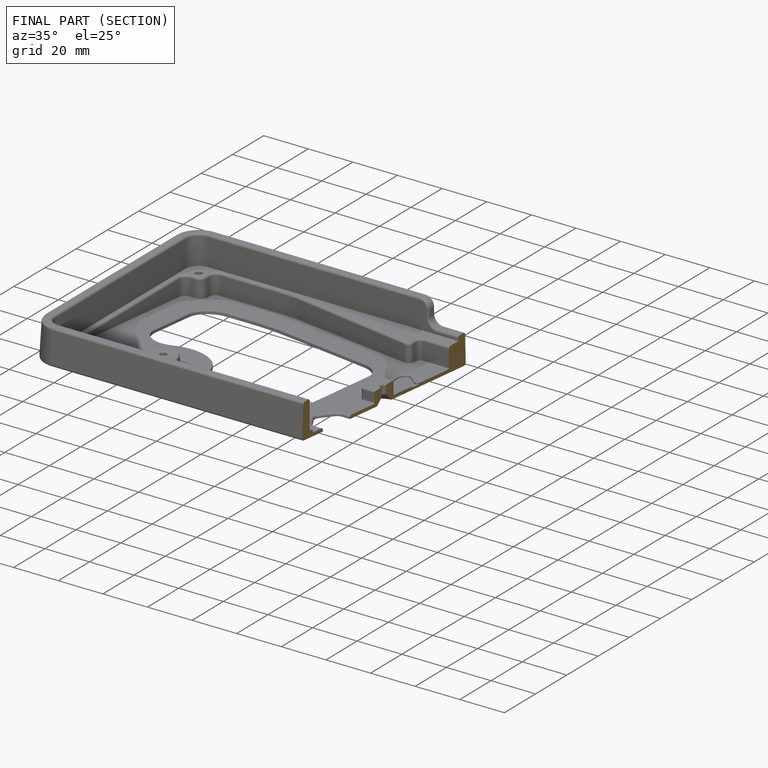
[diagram: finished part — half-section view (interior)]
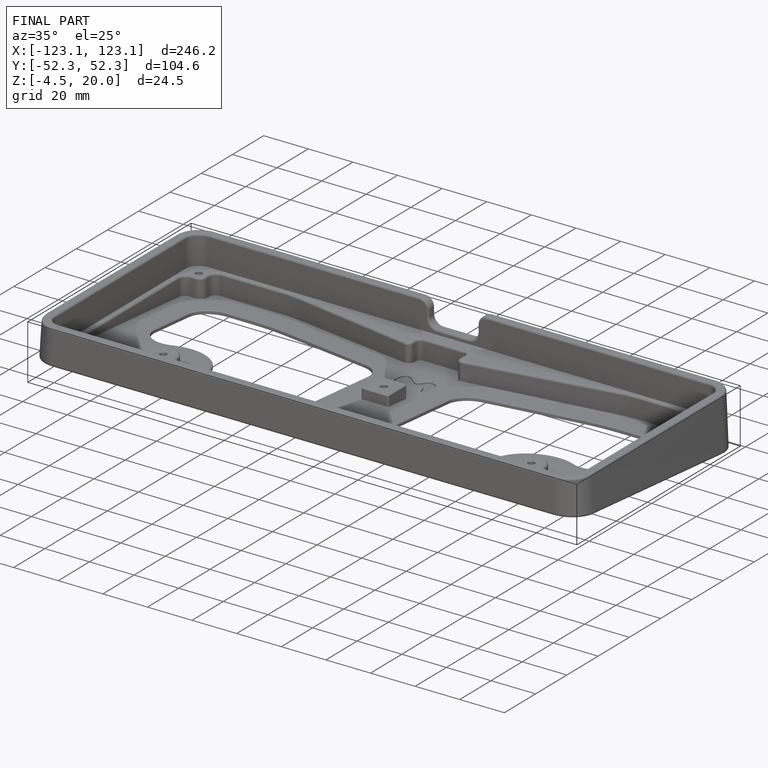
[diagram: finished part — iso view with bounding-box wireframe]
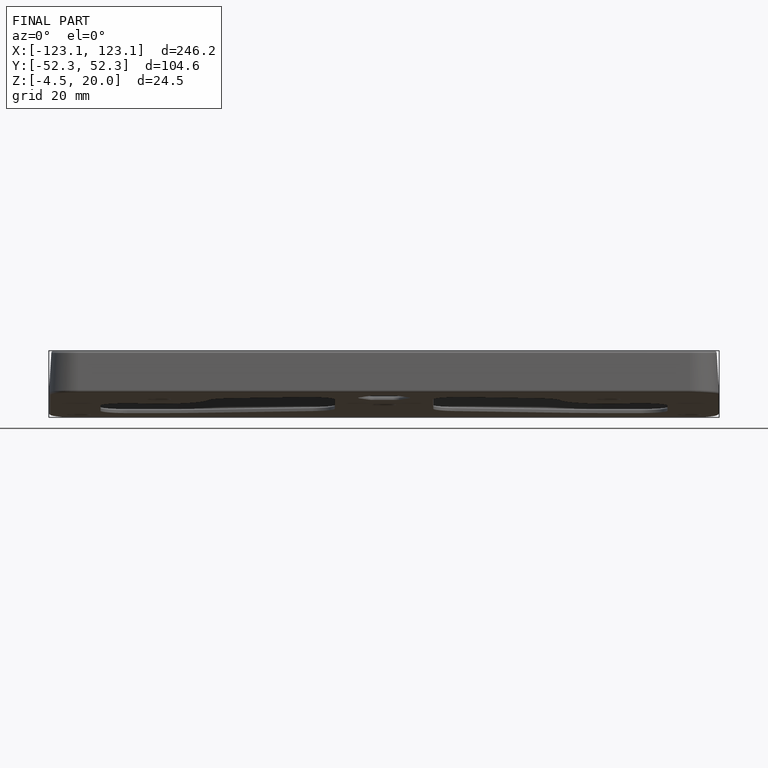
[diagram: finished part — front view with bounding-box wireframe]
